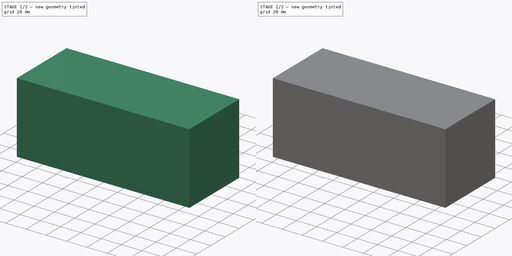
[diagram: build sequence overview — one tinted view per stage of 2, left to right]
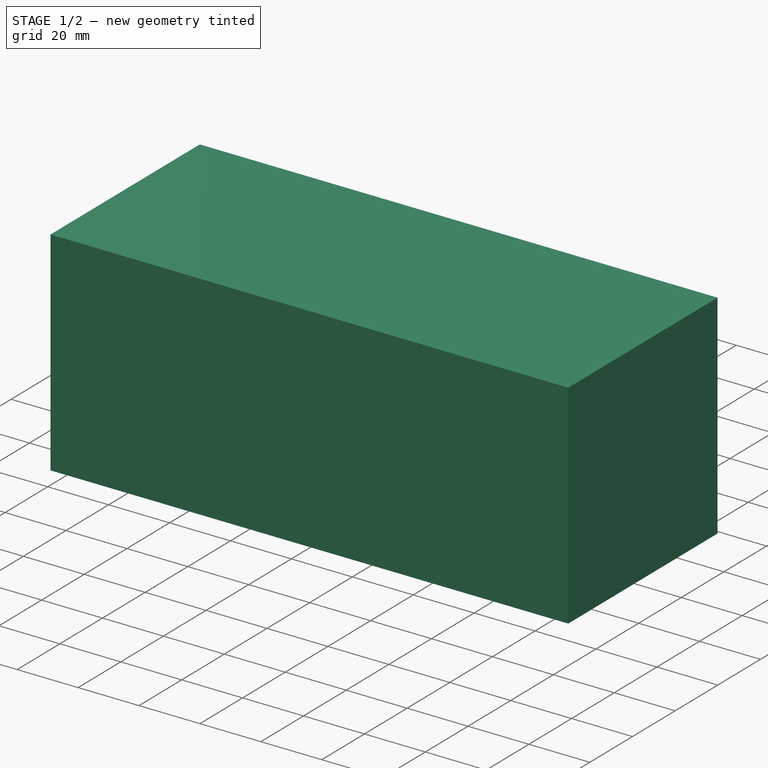
[diagram: stage 1 of 2 — iso view after this stage's code; geometry added in this stage tinted green]
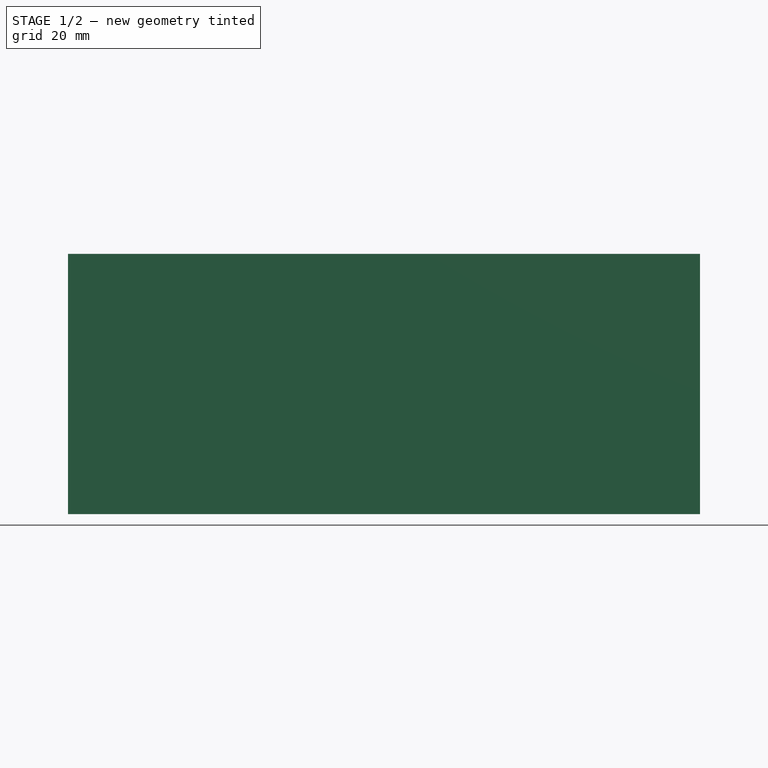
[diagram: stage 1 of 2 — front view after this stage's code; geometry added in this stage tinted green]
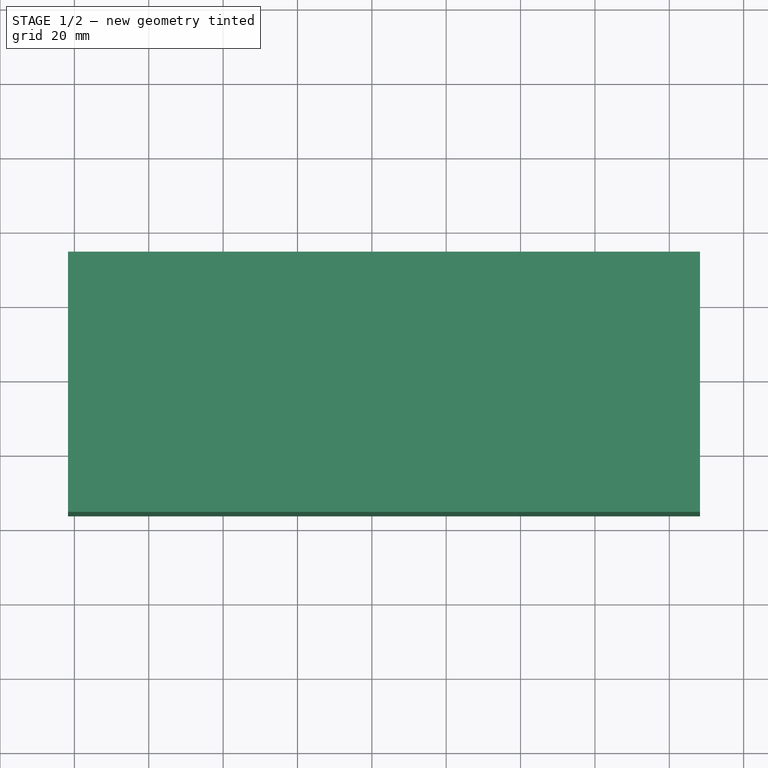
[diagram: stage 1 of 2 — top view after this stage's code; geometry added in this stage tinted green]
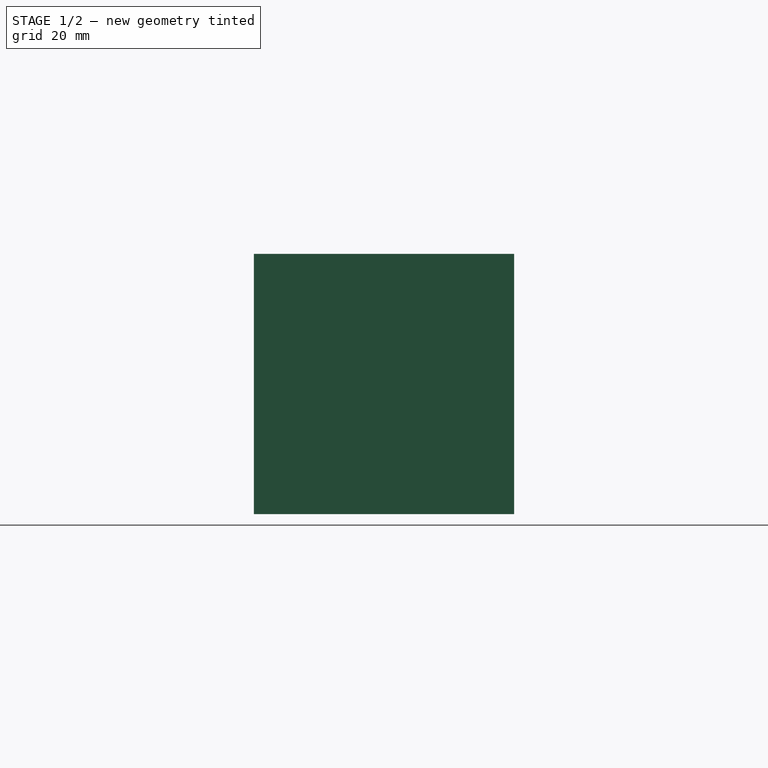
[diagram: stage 1 of 2 — right view after this stage's code; geometry added in this stage tinted green]
FCSTD DOCUMENT  (FreeCAD 0.19R24366 (Git))
Label: ElectronicAssembly_v2
License: All rights reserved
LicenseURL: http://en.wikipedia.org/wiki/All_rights_reserved
objects: App::MeasureDistance×4, Sketcher::SketchObject×2, PartDesign::Pad×1, PartDesign::Pocket×1, PartDesign::Body×1, App::Part×1
note: 7 computed .brp shape members not serialized (recipe doc carries the construction recipe); baked Part::Feature solids carry a one-line shape summary decoded from their .brp

FEATURE [Sketcher::SketchObject] Sketch006
  FullyConstrained = false
  MapMode = 5
  Support = -> [XY_Plane006]
  sketch-geometry (4):
    g0: LineSegment StartX=-81.7311 StartY=33.7707 StartZ=0 EndX=88.2689 EndY=33.7707 EndZ=0
    g1: LineSegment StartX=88.2689 StartY=33.7707 StartZ=0 EndX=88.2689 EndY=-36.2293 EndZ=0
    g2: LineSegment StartX=88.2689 StartY=-36.2293 StartZ=0 EndX=-81.7311 EndY=-36.2293 EndZ=0
    g3: LineSegment StartX=-81.7311 StartY=-36.2293 StartZ=0 EndX=-81.7311 EndY=33.7707 EndZ=0
  constraints (10):
    c: Coincident(g0,g1)
    c: Coincident(g1,g2)
    c: Coincident(g2,g3)
    c: Coincident(g3,g0)
    c: Horizontal(g0)
    c: Horizontal(g2)
    c: Vertical(g1)
    c: Vertical(g3)
    c: DistanceX(g2,g2) = 170
    c: DistanceY(g1,g1) = 70
FEATURE [PartDesign::Pad] Pad002
  Direction = (1,1,1)
  Length = 70
  Length2 = 100
  Profile = -> Sketch006
  Type = 0
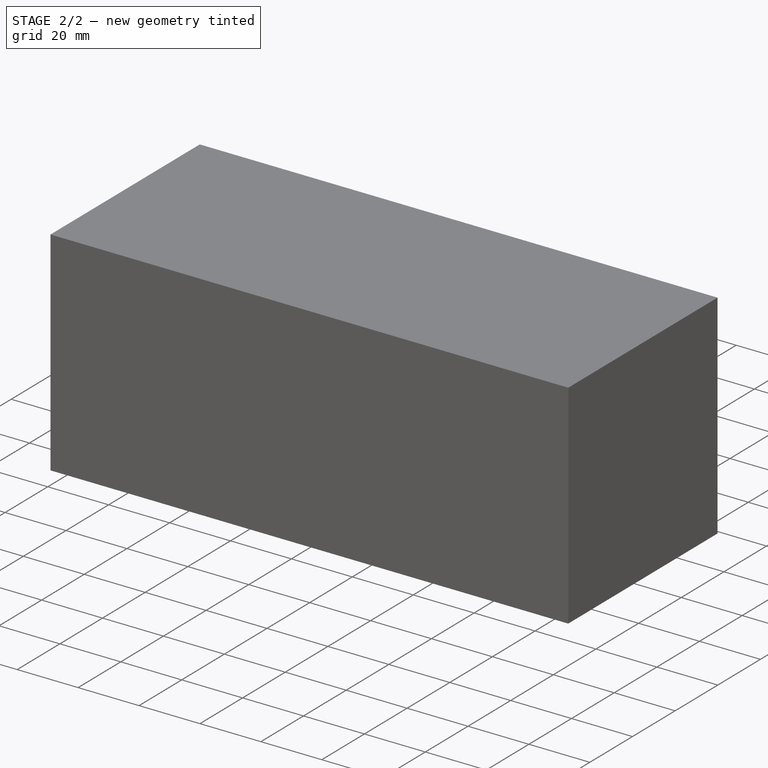
[diagram: stage 2 of 2 — iso view after this stage's code; geometry added in this stage tinted green]
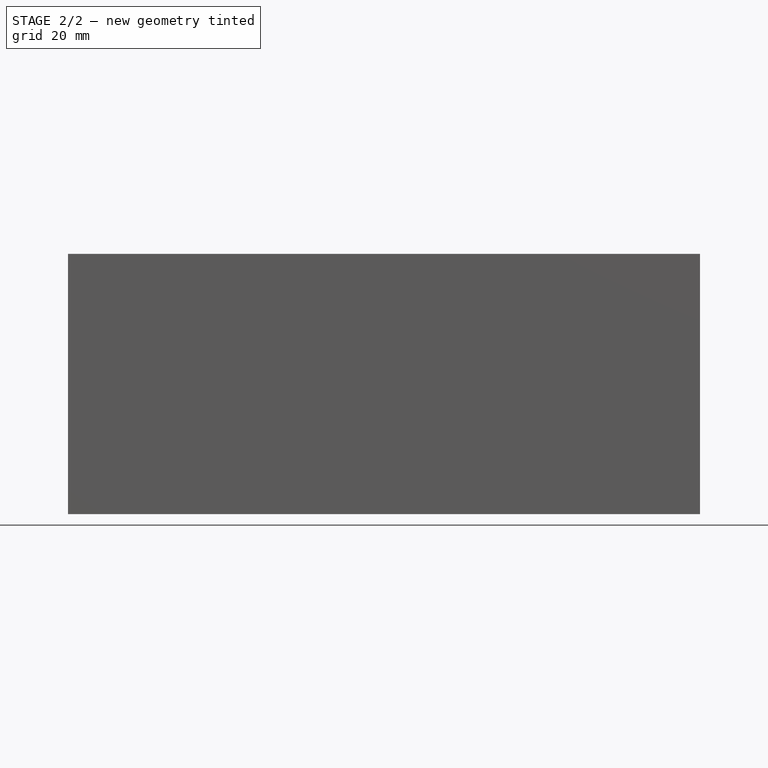
[diagram: stage 2 of 2 — front view after this stage's code; geometry added in this stage tinted green]
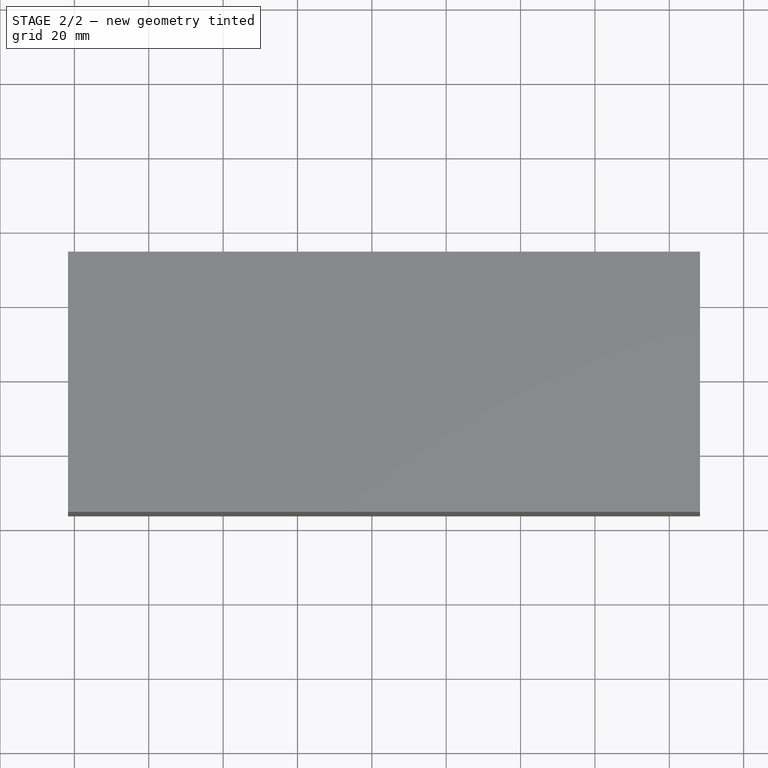
[diagram: stage 2 of 2 — top view after this stage's code; geometry added in this stage tinted green]
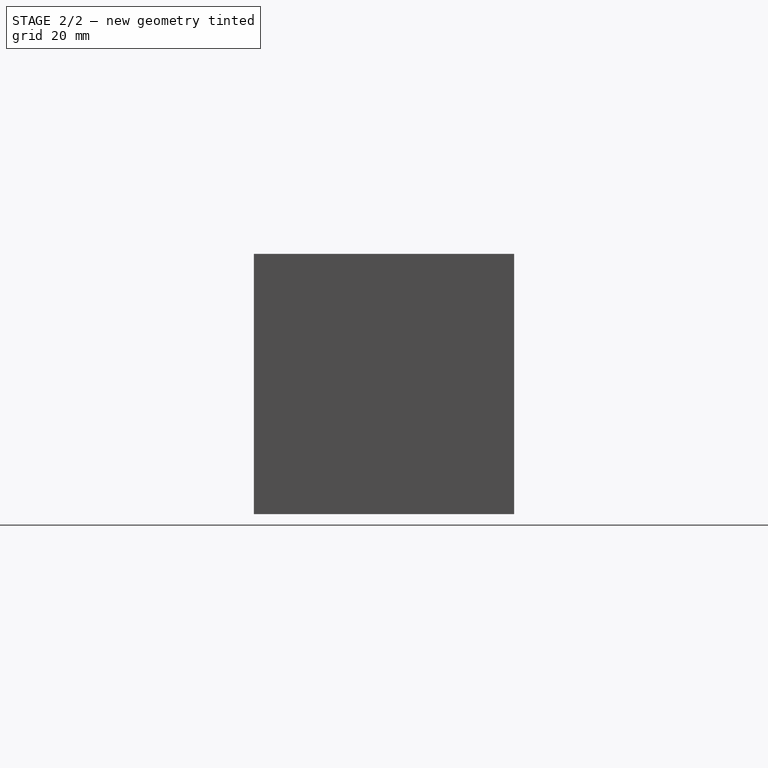
[diagram: stage 2 of 2 — right view after this stage's code; geometry added in this stage tinted green]
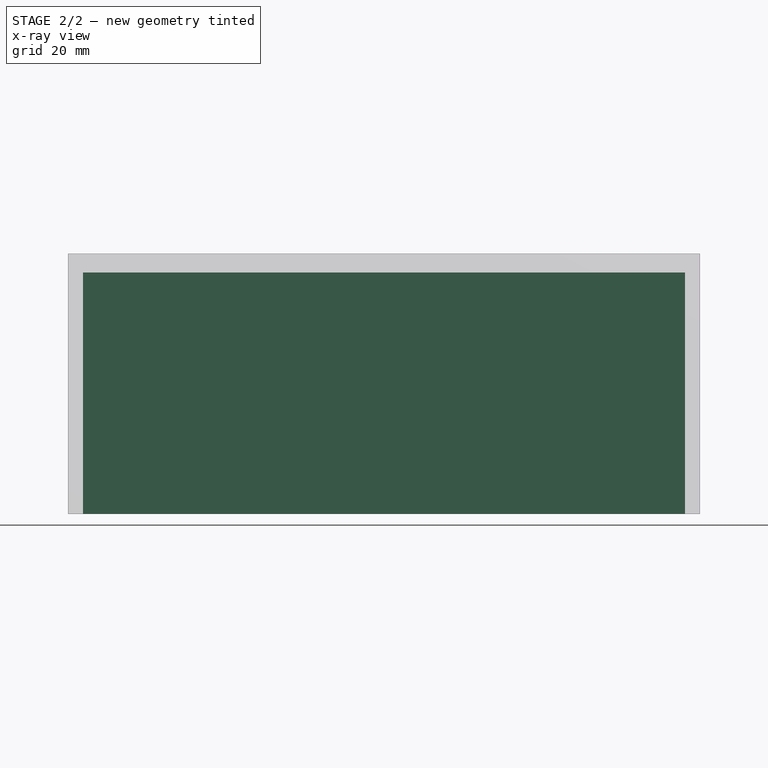
[diagram: stage 2 of 2 — x-ray composite at the front view; earlier geometry ghosted, this stage's added geometry solid]
FEATURE [Sketcher::SketchObject] Sketch007
  ExternalGeometry = -> [Pad002]
  FullyConstrained = true
  MapMode = 5
  Placement = pos=(0,0,0) rot=(1,0,0;3.14159rad)
  Support = -> [Pad002]
  sketch-geometry (24):
    g0: LineSegment StartX=-78.1605 StartY=32.6587 StartZ=0 EndX=-74.1605 EndY=28.6587 EndZ=0
    g1: LineSegment StartX=-78.1605 StartY=-32.3413 StartZ=0 EndX=-74.1605 EndY=-28.3413 EndZ=0
    g2: LineSegment StartX=86.8395 StartY=-32.3413 StartZ=0 EndX=82.8395 EndY=-28.3413 EndZ=0
    g3: LineSegment StartX=86.8395 StartY=32.6587 StartZ=0 EndX=82.8395 EndY=28.6587 EndZ=0
    g4: LineSegment StartX=-74.1605 StartY=28.6587 StartZ=0 EndX=-68.1605 EndY=28.6587 EndZ=0
    g5: LineSegment StartX=-68.1605 StartY=28.6587 StartZ=0 EndX=-68.1605 EndY=22.6587 EndZ=0
    g6: LineSegment StartX=-68.1605 StartY=22.6587 StartZ=0 EndX=-74.1605 EndY=22.6587 EndZ=0
    g7: LineSegment StartX=-74.1605 StartY=22.6587 StartZ=0 EndX=-74.1605 EndY=28.6587 EndZ=0
    g8: LineSegment StartX=-74.1605 StartY=-28.3413 StartZ=0 EndX=-68.1605 EndY=-28.3413 EndZ=0
    g9: LineSegment StartX=-68.1605 StartY=-28.3413 StartZ=0 EndX=-68.1605 EndY=-22.3413 EndZ=0
    g10: LineSegment StartX=-68.1605 StartY=-22.3413 StartZ=0 EndX=-74.1605 EndY=-22.3413 EndZ=0
    g11: LineSegment StartX=-74.1605 StartY=-22.3413 StartZ=0 EndX=-74.1605 EndY=-28.3413 EndZ=0
    g12: LineSegment StartX=82.8395 StartY=-28.3413 StartZ=0 EndX=76.8395 EndY=-28.3413 EndZ=0
    g13: LineSegment StartX=76.8395 StartY=-28.3413 StartZ=0 EndX=76.8395 EndY=-22.3413 EndZ=0
    g14: LineSegment StartX=76.8395 StartY=-22.3413 StartZ=0 EndX=82.8395 EndY=-22.3413 EndZ=0
    g15: LineSegment StartX=82.8395 StartY=-22.3413 StartZ=0 EndX=82.8395 EndY=-28.3413 EndZ=0
    g16: LineSegment StartX=82.8395 StartY=28.6587 StartZ=0 EndX=76.8395 EndY=28.6587 EndZ=0
    g17: LineSegment StartX=76.8395 StartY=28.6587 StartZ=0 EndX=76.8395 EndY=22.6587 EndZ=0
    g18: LineSegment StartX=76.8395 StartY=22.6587 StartZ=0 EndX=82.8395 EndY=22.6587 EndZ=0
    g19: LineSegment StartX=82.8395 StartY=22.6587 StartZ=0 EndX=82.8395 EndY=28.6587 EndZ=0
    g20: LineSegment StartX=76.8395 StartY=28.6587 StartZ=0 EndX=-68.1605 EndY=28.6587 EndZ=0
    g21: LineSegment StartX=-74.1605 StartY=-22.3413 StartZ=0 EndX=-74.1605 EndY=22.6587 EndZ=0
    g22: LineSegment StartX=-68.1605 StartY=-28.3413 StartZ=0 EndX=76.8395 EndY=-28.3413 EndZ=0
    g23: LineSegment StartX=82.8395 StartY=-22.3413 StartZ=0 EndX=82.8395 EndY=22.6587 EndZ=0
  constraints (64):
    c: Coincident(g0,g-6)
    c: Coincident(g1,g-6)
    c: Coincident(g2,g-5)
    c: Coincident(g3,g-4)
    c: Equal(g0,g1)
    c: Equal(g3,g0)
    c: Coincident(g4,g5)
    c: Coincident(g5,g6)
    c: Coincident(g6,g7)
    c: Coincident(g7,g4)
    c: Horizontal(g4)
    c: Horizontal(g6)
    c: Vertical(g5)
    c: Vertical(g7)
    c: Coincident(g8,g9)
    c: Coincident(g9,g10)
    c: Coincident(g10,g11)
    c: Coincident(g11,g8)
    c: Horizontal(g8)
    c: Horizontal(g10)
    c: Vertical(g9)
    c: Vertical(g11)
    c: Coincident(g12,g13)
    c: Coincident(g13,g14)
    c: Coincident(g14,g15)
    c: Coincident(g15,g12)
    c: Horizontal(g12)
    c: Horizontal(g14)
    c: Vertical(g13)
    c: Vertical(g15)
    c: Coincident(g16,g17)
    c: Coincident(g17,g18)
    c: Coincident(g18,g19)
    c: Coincident(g19,g16)
    c: Horizontal(g16)
    c: Horizontal(g18)
    c: Vertical(g17)
    c: Vertical(g19)
    c: Equal(g14,g18)
    c: Equal(g17,g5)
    c: Equal(g13,g9)
    c: Equal(g9,g10)
    c: DistanceX(g14,g14) = 6
    c: Coincident(g20,g16)
    c: Coincident(g20,g4)
    c: Coincident(g22,g8)
    c: Coincident(g22,g12)
    c: Coincident(g23,g14)
    c: Coincident(g23,g18)
    c: Vertical(g23)
    c: Coincident(g16,g3)
    c: DistanceY(g3,g3) = 4
    c: Coincident(g0,g4)
    c: Coincident(g21,g6)
    c: Coincident(g2,g12)
    c: Equal(g2,g3)
    c: Equal(g13,g14)
    c: Coincident(g8,g1)
    c: Coincident(g10,g21)
    c: Equal(g6,g7)
    c: DistanceX(g6,g6) = 6
    c: DistanceX(g0,g0) = 4
    c: DistanceY(g0,g0) = 4
    c: DistanceY(g1,g1) = 4
FEATURE [App::MeasureDistance] Distance  label="Distance: 2.00 mm"
  Distance = 2.00053
  P1 = (-72.2064,32.3413,0)
  P2 = (-72.1605,30.3413,0)
FEATURE [App::MeasureDistance] Distance001  label="Distance: 8.43 mm"
  Distance = 8.42962
  P1 = (-78.1605,32.3166,0)
  P2 = (-72.2145,26.3413,0)
FEATURE [App::MeasureDistance] Distance002  label="Distance: 1.97 mm"
  Distance = 1.97155
  P1 = (-76.1895,26.2883,0)
  P2 = (-78.1605,26.3323,0)
FEATURE [PartDesign::Pocket] Pocket
  BaseFeature = -> Pad002
  Length = 65
  Length2 = 100
  Profile = -> Sketch007
  Type = 0
FEATURE [PartDesign::Body] Body002
  Group = -> [Sketch006,Pad002,Sketch007,Pocket]
  Origin = -> Origin006
  Tip = -> Pocket
FEATURE [App::Part] Part003  label="ElectronicsEnclosure"
  Group = -> [Body002]
  Origin = -> Origin005
FEATURE [App::MeasureDistance] Distance003  label="Distance: 57.00 mm"
  Distance = 57.0001
  P1 = (-59.0401,28.3413,0)
  P2 = (-59.1706,-28.6587,0)
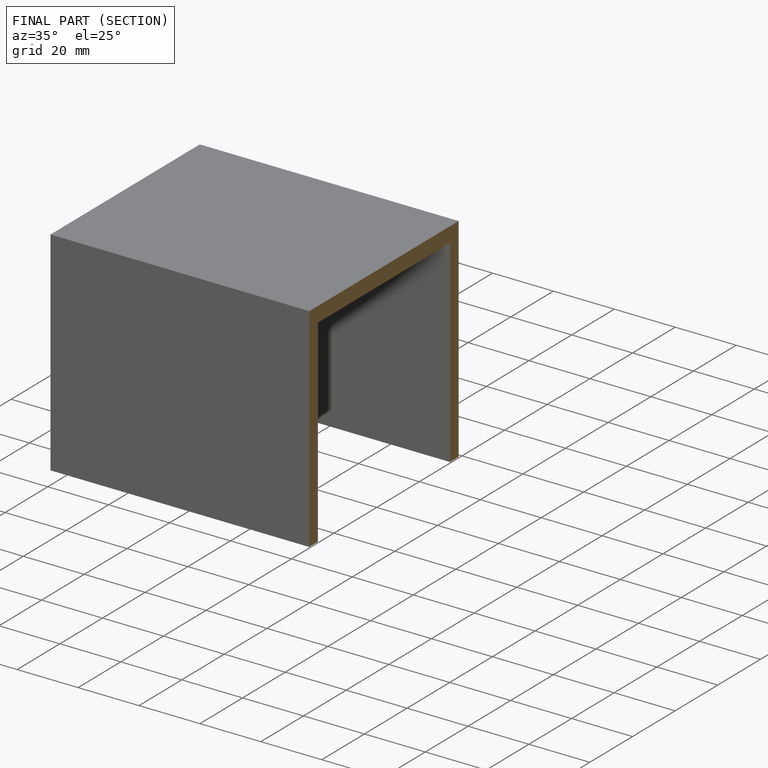
[diagram: finished part — half-section view (interior)]
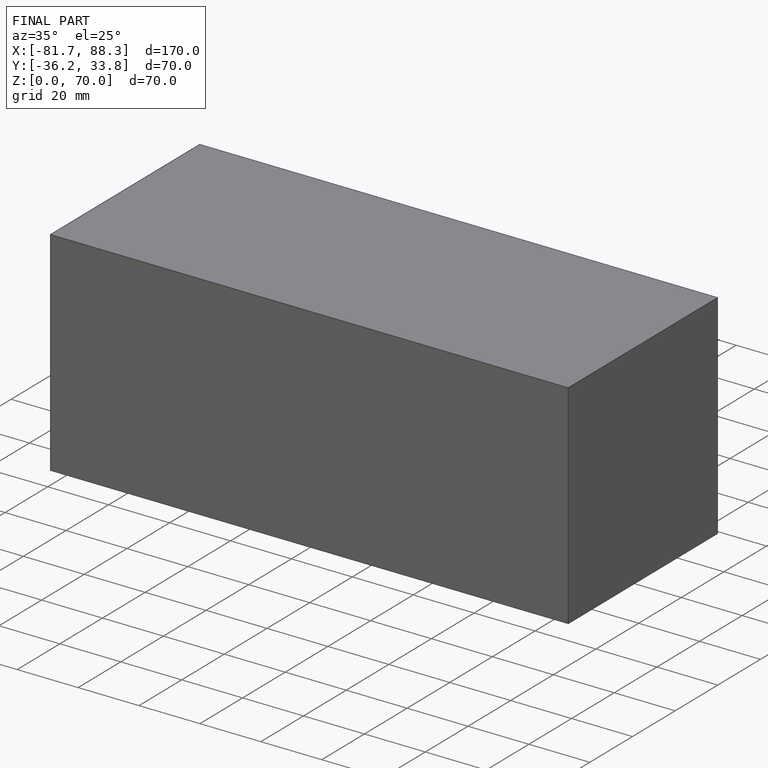
[diagram: finished part — iso view with bounding-box wireframe]
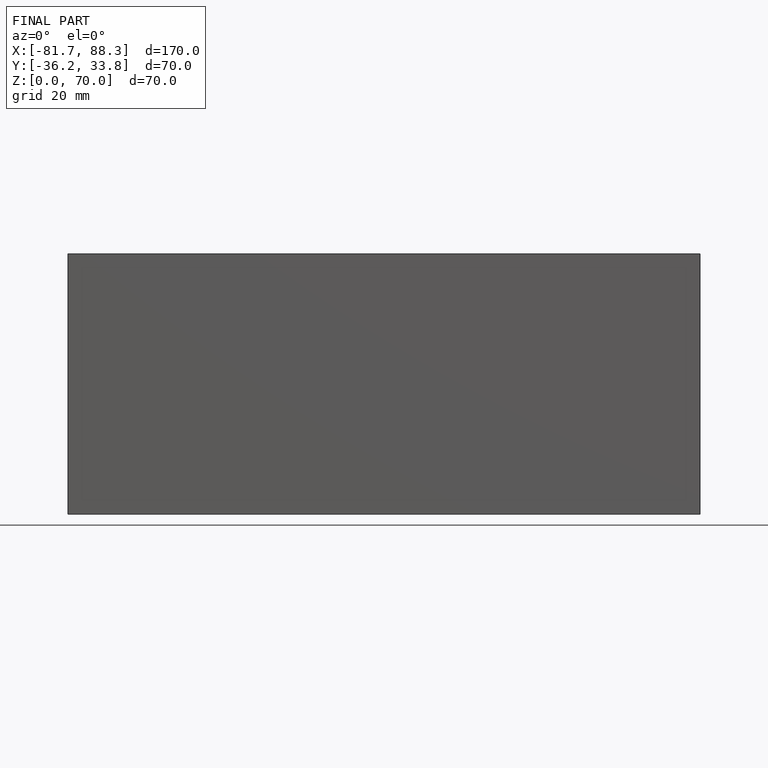
[diagram: finished part — front view with bounding-box wireframe]
